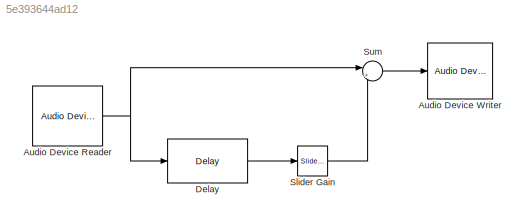
MODEL slx_5e393644ad12
KIND model
CONFIG AbsTol = auto
CONFIG EnableMultiTasking = off
CONFIG FixedStep = auto
CONFIG MaxStep = auto
CONFIG MinStep = auto
CONFIG RelTol = 1e-3
CONFIG SampleTimeConstraint = Unconstrained
CONFIG Solver = VariableStepAuto
CONFIG SolverName = VariableStepAuto
CONFIG StartTime = 0.0
CONFIG StopTime = inf
BLOCK [Reference] Audio Device Reader  REF=audiosources/Audio Device
Reader
  Ports = [0, 1]
  SourceBlock = audiosources/Audio Device\nReader
  SourceProductBaseCode = AU
  SourceType = Audio Device Reader
BLOCK [Reference] Audio Device Writer  REF=dspsnks4/Audio Device
Writer
  Ports = [1]
  SourceBlock = dspsnks4/Audio Device\nWriter
  SourceProductBaseCode = DS
  SourceType = Audio Device Writer
BLOCK [Delay] Delay
  DelayLength = 4000
  InputPortMap = u0
  InputProcessing = Columns as channels (frame based)
  Ports = [1, 1]
BLOCK [Reference] Slider Gain  REF=simulink/Math
Operations/Slider
Gain
  Ports = [1, 1]
  SourceBlock = simulink/Math\nOperations/Slider\nGain
  SourceProductBaseCode = SL
  SourceType = Slider Gain
BLOCK [Sum] Sum
  Inputs = |++
  Ports = [2, 1]
NET Audio Device Reader:1 -> Delay:1, Sum:1
LINE Delay:1 -> Slider Gain:1
LINE Slider Gain:1 -> Sum:2
LINE Sum:1 -> Audio Device Writer:1
note: NET lines group one-source signal fan-out (src -> all destinations, sorted); 1:1 wires keep LINE
